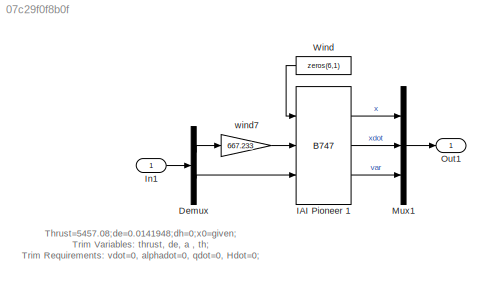
MODEL slx_07c29f0f8b0f
KIND model
CONFIG AbsTol = auto
CONFIG EnableMultiTasking = on
CONFIG FixedStep = auto
CONFIG MaxStep = auto
CONFIG MinStep = auto
CONFIG RelTol = 1e-3
CONFIG SampleTimeConstraint = Unconstrained
CONFIG Solver = ode45
CONFIG SolverName = ode45
CONFIG StartTime = 0.0
CONFIG StopTime = 10.0
BLOCK [Reference]  IAI Pioneer 1  REF=airlib/B747  (lib defined in mdl_00852699f85c, mdl_b3a2112ccc5d, +1 more)
  Ports = [3, 3]
  SourceBlock = airlib/B747
  SourceType = General Nonlinear Aircraft Model
BLOCK [Demux] Demux
  Outputs = [6 4]
  Ports = [1, 2]
BLOCK [Inport] In1
  IconDisplay = Port number
BLOCK [Mux] Mux1
  Commented = on
  Inputs = [12 12 12]
  Ports = [3, 1]
BLOCK [Outport] Out1
  IconDisplay = Port number
BLOCK [Constant] Wind
  Value = zeros(6,1)
BLOCK [Gain] wind7
  Gain = 667.233
ANNOTATION (root): Thrust=5457.08;de=0.0141948;dh=0;x0=given; Trim Variables: thrust, de, a , th; Trim Requirements: vdot=0, alphadot=0, qdot=0, Hdot=0;
LINE  IAI Pioneer 1:1 -> Mux1:1
LINE  IAI Pioneer 1:2 -> Mux1:2
LINE  IAI Pioneer 1:3 -> Mux1:3
LINE Demux:1 -> wind7:1
LINE Demux:2 ->  IAI Pioneer 1:3
LINE In1:1 -> Demux:1
LINE Mux1:1 -> Out1:1
LINE Wind:1 ->  IAI Pioneer 1:1
LINE wind7:1 ->  IAI Pioneer 1:2
